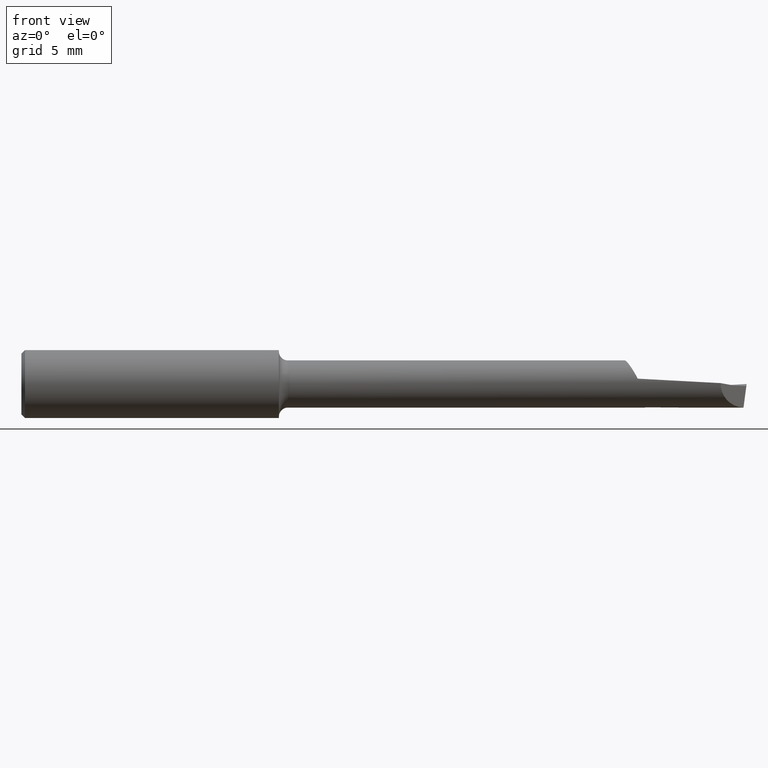
[diagram: clean part render]
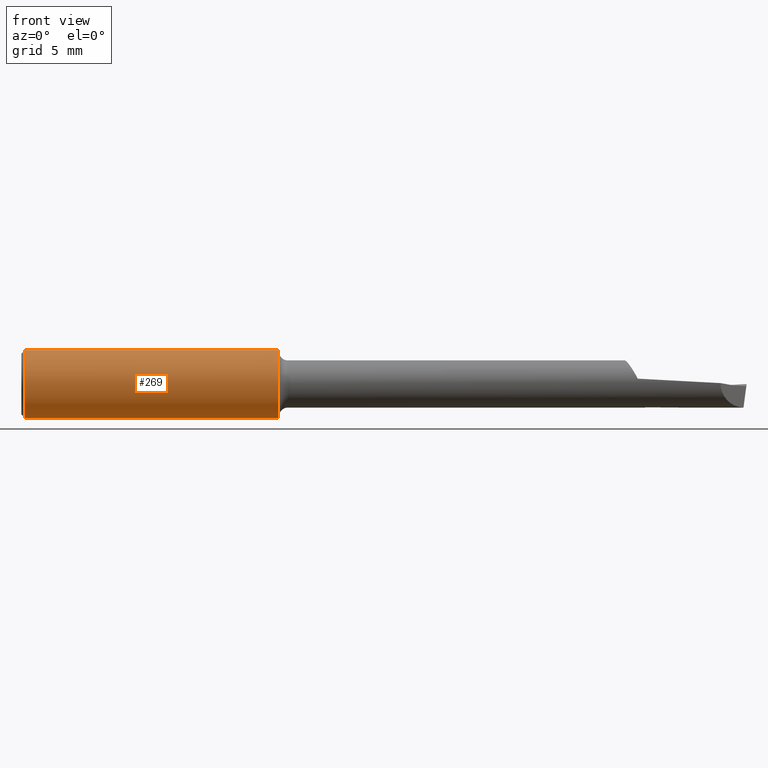
[diagram: same view with one face highlighted and labeled with its STEP entity id]
A machine part, front view. The second image highlights one B-rep face of the part: STEP entity #269.
In plain terms, the highlighted cylindrical surface (edge-blend (fillet) strip) has radius 2.3774 mm, axis along (-1, -0, -0).
Its self-contained STEP definition (entity closure, byte-faithful):
#9 = DIRECTION ( 'NONE',  ( -1.000000000000000000, -0.000000000000000000, -0.000000000000000000 ) ) ;
#31 = AXIS2_PLACEMENT_3D ( 'NONE', #699, #410, #651 ) ;
#42 = CIRCLE ( 'NONE', #31, 0.09360000000000001652 ) ;
#62 = EDGE_CURVE ( 'NONE', #399, #348, #172, .T. ) ;
#76 = CYLINDRICAL_SURFACE ( 'NONE', #731, 0.09360000000000001652 ) ;
#79 = VERTEX_POINT ( 'NONE', #754 ) ;
#83 = CARTESIAN_POINT ( 'NONE',  ( 0.009999999999999995004, 0.000000000000000000, 0.09360000000000001652 ) ) ;
#85 = EDGE_CURVE ( 'NONE', #397, #399, #244, .T. ) ;
#108 = AXIS2_PLACEMENT_3D ( 'NONE', #475, #9, #238 ) ;
#116 = CARTESIAN_POINT ( 'NONE',  ( 0.000000000000000000, 1.146269404001922775E-17, -0.09360000000000001652 ) ) ;
#172 = CIRCLE ( 'NONE', #108, 0.09360000000000001652 ) ;
#238 = DIRECTION ( 'NONE',  ( 0.000000000000000000, 0.000000000000000000, 1.000000000000000000 ) ) ;
#244 = LINE ( 'NONE', #116, #281 ) ;
#249 = DIRECTION ( 'NONE',  ( -1.000000000000000000, -0.000000000000000000, -0.000000000000000000 ) ) ;
#267 = CARTESIAN_POINT ( 'NONE',  ( 0.009999999999999995004, 1.146269404001922775E-17, -0.09360000000000001652 ) ) ;
#269 = ADVANCED_FACE ( 'NONE', ( #431 ), #76, .T. ) ;
#271 = DIRECTION ( 'NONE',  ( -1.000000000000000000, -0.000000000000000000, -0.000000000000000000 ) ) ;
#280 = VECTOR ( 'NONE', #271, 39.37007874015748143 ) ;
#281 = VECTOR ( 'NONE', #645, 39.37007874015748143 ) ;
#293 = ORIENTED_EDGE ( 'NONE', *, *, #85, .F. ) ;
#311 = CARTESIAN_POINT ( 'NONE',  ( 0.000000000000000000, 0.000000000000000000, 0.09360000000000001652 ) ) ;
#327 = ORIENTED_EDGE ( 'NONE', *, *, #612, .F. ) ;
#348 = VERTEX_POINT ( 'NONE', #83 ) ;
#397 = VERTEX_POINT ( 'NONE', #569 ) ;
#399 = VERTEX_POINT ( 'NONE', #267 ) ;
#410 = DIRECTION ( 'NONE',  ( 1.000000000000000000, 0.000000000000000000, 0.000000000000000000 ) ) ;
#431 = FACE_OUTER_BOUND ( 'NONE', #722, .T. ) ;
#475 = CARTESIAN_POINT ( 'NONE',  ( 0.009999999999999995004, 0.000000000000000000, 0.000000000000000000 ) ) ;
#549 = DIRECTION ( 'NONE',  ( 0.000000000000000000, 0.000000000000000000, 1.000000000000000000 ) ) ;
#569 = CARTESIAN_POINT ( 'NONE',  ( 0.7100000000000000755, 1.146269404001922775E-17, -0.09360000000000001652 ) ) ;
#577 = ORIENTED_EDGE ( 'NONE', *, *, #62, .F. ) ;
#605 = ORIENTED_EDGE ( 'NONE', *, *, #667, .T. ) ;
#612 = EDGE_CURVE ( 'NONE', #79, #397, #42, .T. ) ;
#645 = DIRECTION ( 'NONE',  ( -1.000000000000000000, -0.000000000000000000, -0.000000000000000000 ) ) ;
#651 = DIRECTION ( 'NONE',  ( 0.000000000000000000, 0.000000000000000000, -1.000000000000000000 ) ) ;
#665 = CARTESIAN_POINT ( 'NONE',  ( 0.000000000000000000, 0.000000000000000000, 0.000000000000000000 ) ) ;
#667 = EDGE_CURVE ( 'NONE', #79, #348, #733, .T. ) ;
#699 = CARTESIAN_POINT ( 'NONE',  ( 0.7100000000000000755, 0.000000000000000000, 0.000000000000000000 ) ) ;
#722 = EDGE_LOOP ( 'NONE', ( #293, #327, #605, #577 ) ) ;
#731 = AXIS2_PLACEMENT_3D ( 'NONE', #665, #249, #549 ) ;
#733 = LINE ( 'NONE', #311, #280 ) ;
#754 = CARTESIAN_POINT ( 'NONE',  ( 0.7100000000000000755, 0.000000000000000000, 0.09360000000000001652 ) ) ;